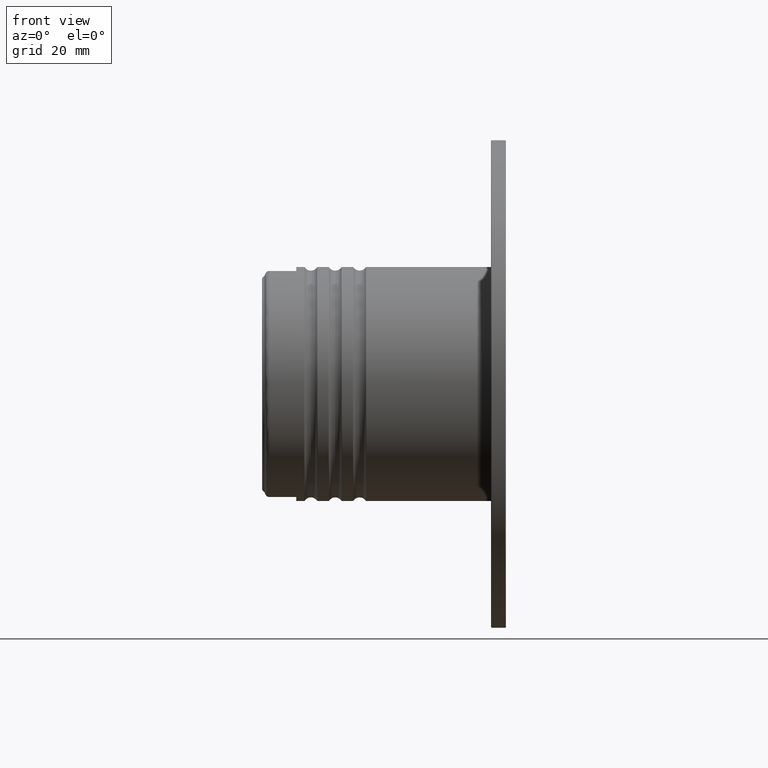
[diagram: clean part render]
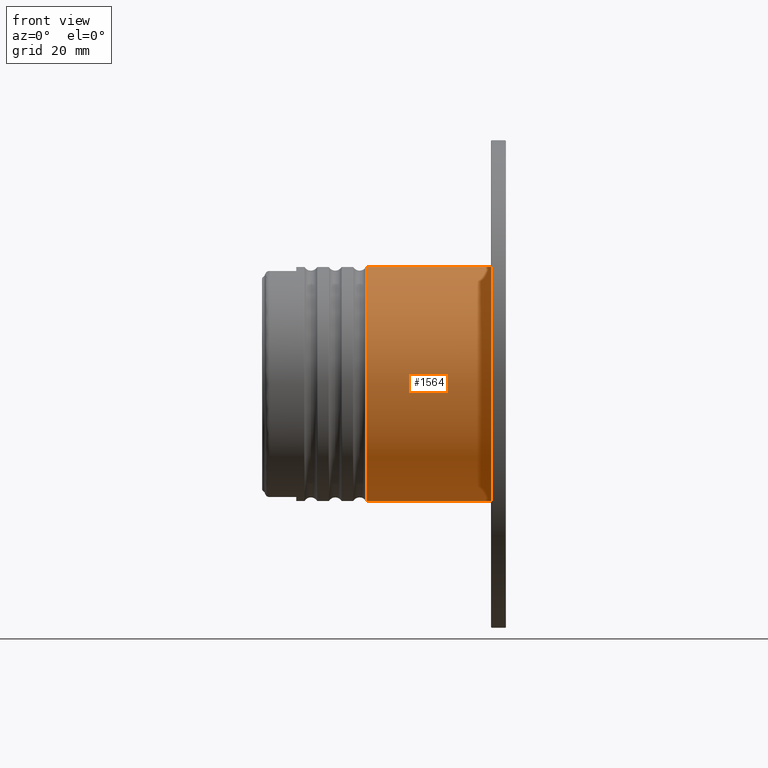
[diagram: same view with one face highlighted and labeled with its STEP entity id]
A machine part, front view. The second image highlights one B-rep face of the part: STEP entity #1564.
In plain terms, the highlighted cylindrical surface (partial cylindrical patch) has radius 24 mm, axis along (1, 0, 0).
Its self-contained STEP definition (entity closure, byte-faithful):
#32 = LINE ( 'NONE', #6973, #2768 ) ;
#97 = FACE_OUTER_BOUND ( 'NONE', #1251, .T. ) ;
#185 = AXIS2_PLACEMENT_3D ( 'NONE', #4341, #1640, #2724 ) ;
#260 = ORIENTED_EDGE ( 'NONE', *, *, #5219, .T. ) ;
#320 = VERTEX_POINT ( 'NONE', #3022 ) ;
#673 = VERTEX_POINT ( 'NONE', #768 ) ;
#768 = CARTESIAN_POINT ( 'NONE',  ( -28.31515208201284040, 2.939152317953648289E-15, 24.00000000000000355 ) ) ;
#968 = ORIENTED_EDGE ( 'NONE', *, *, #6881, .F. ) ;
#1251 = EDGE_LOOP ( 'NONE', ( #1480, #1847, #260, #968 ) ) ;
#1480 = ORIENTED_EDGE ( 'NONE', *, *, #6142, .F. ) ;
#1564 = ADVANCED_FACE ( 'NONE', ( #97 ), #6228, .T. ) ;
#1570 = LINE ( 'NONE', #3703, #5776 ) ;
#1640 = DIRECTION ( 'NONE',  ( 1.000000000000000000, -0.0000000000000000000, -0.0000000000000000000 ) ) ;
#1847 = ORIENTED_EDGE ( 'NONE', *, *, #3702, .F. ) ;
#2000 = DIRECTION ( 'NONE',  ( 1.000000000000000000, -0.0000000000000000000, -0.0000000000000000000 ) ) ;
#2006 = DIRECTION ( 'NONE',  ( 1.000000000000000000, -0.0000000000000000000, -0.0000000000000000000 ) ) ;
#2535 = CIRCLE ( 'NONE', #6019, 24.00000000000000000 ) ;
#2724 = DIRECTION ( 'NONE',  ( 0.0000000000000000000, 0.0000000000000000000, -1.000000000000000000 ) ) ;
#2768 = VECTOR ( 'NONE', #2000, 1000.000000000000000 ) ;
#3022 = CARTESIAN_POINT ( 'NONE',  ( -2.699999999999999289, 2.939152317953648289E-15, 24.00000000000000355 ) ) ;
#3161 = CIRCLE ( 'NONE', #185, 24.00000000000000000 ) ;
#3271 = CARTESIAN_POINT ( 'NONE',  ( -2.699999999999999289, 0.0000000000000000000, -24.00000000000000000 ) ) ;
#3702 = EDGE_CURVE ( 'NONE', #4425, #673, #2535, .T. ) ;
#3703 = CARTESIAN_POINT ( 'NONE',  ( 0.0000000000000000000, 2.939152317953647500E-15, 23.99999999999999645 ) ) ;
#3855 = CARTESIAN_POINT ( 'NONE',  ( -28.31515208201284040, 0.0000000000000000000, 0.0000000000000000000 ) ) ;
#4193 = CARTESIAN_POINT ( 'NONE',  ( 0.0000000000000000000, 0.0000000000000000000, 0.0000000000000000000 ) ) ;
#4220 = VERTEX_POINT ( 'NONE', #3271 ) ;
#4341 = CARTESIAN_POINT ( 'NONE',  ( -2.699999999999999289, 0.0000000000000000000, 0.0000000000000000000 ) ) ;
#4394 = DIRECTION ( 'NONE',  ( -1.000000000000000000, -0.0000000000000000000, -0.0000000000000000000 ) ) ;
#4425 = VERTEX_POINT ( 'NONE', #5681 ) ;
#4914 = DIRECTION ( 'NONE',  ( 0.0000000000000000000, 0.0000000000000000000, -1.000000000000000000 ) ) ;
#4946 = DIRECTION ( 'NONE',  ( 0.0000000000000000000, 0.0000000000000000000, 1.000000000000000000 ) ) ;
#5219 = EDGE_CURVE ( 'NONE', #4425, #4220, #32, .T. ) ;
#5681 = CARTESIAN_POINT ( 'NONE',  ( -28.31515208201284040, 0.0000000000000000000, -24.00000000000000355 ) ) ;
#5776 = VECTOR ( 'NONE', #6925, 1000.000000000000000 ) ;
#6019 = AXIS2_PLACEMENT_3D ( 'NONE', #3855, #4394, #4946 ) ;
#6142 = EDGE_CURVE ( 'NONE', #673, #320, #1570, .T. ) ;
#6228 = CYLINDRICAL_SURFACE ( 'NONE', #7087, 23.99999999999999645 ) ;
#6881 = EDGE_CURVE ( 'NONE', #320, #4220, #3161, .T. ) ;
#6925 = DIRECTION ( 'NONE',  ( 1.000000000000000000, -0.0000000000000000000, -0.0000000000000000000 ) ) ;
#6973 = CARTESIAN_POINT ( 'NONE',  ( 0.0000000000000000000, 0.0000000000000000000, -23.99999999999999645 ) ) ;
#7087 = AXIS2_PLACEMENT_3D ( 'NONE', #4193, #2006, #4914 ) ;